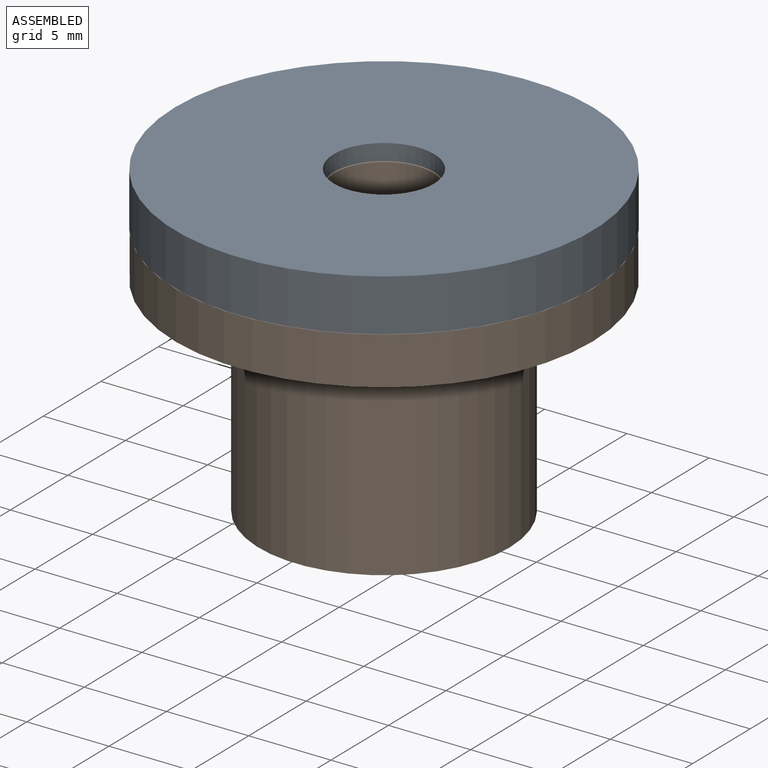
[diagram: assembled view]
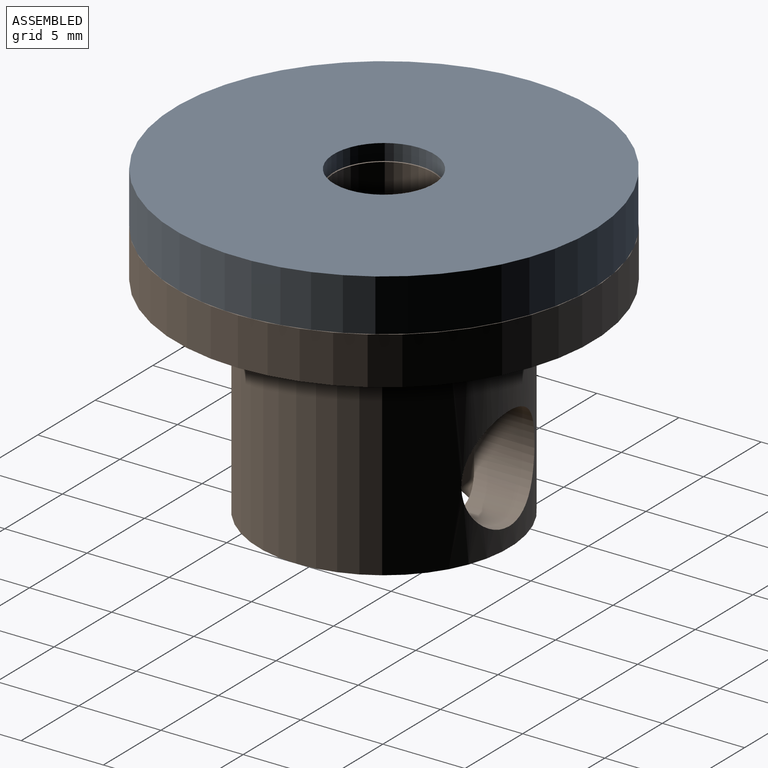
[diagram: assembled view, second angle]
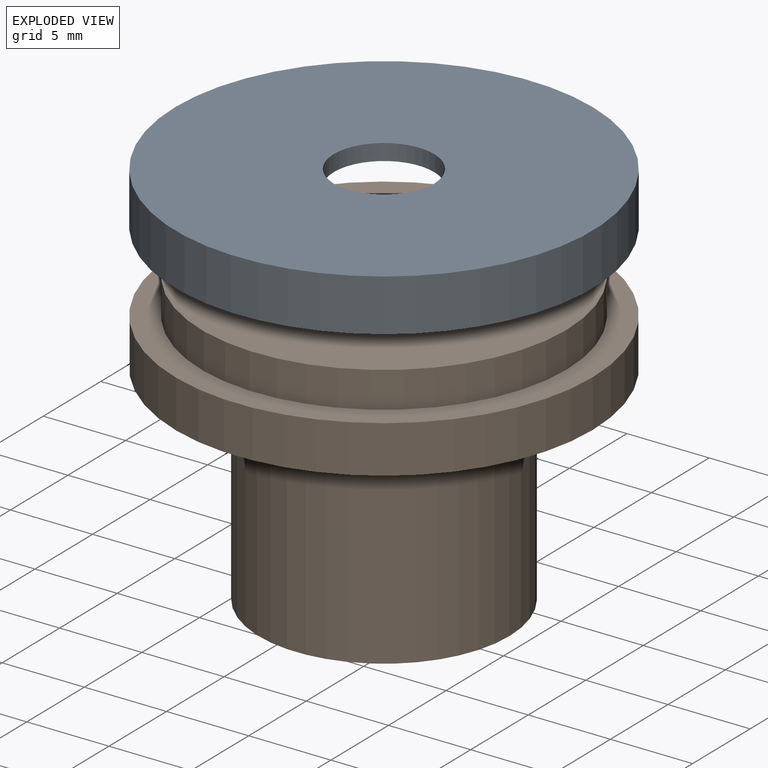
[diagram: exploded view]
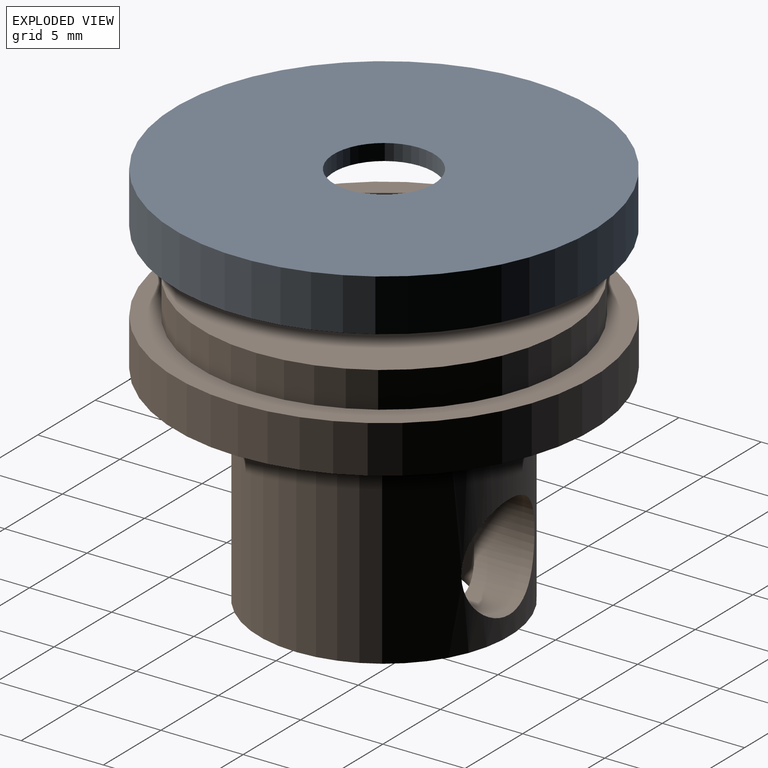
[diagram: exploded view, second angle]
ASSEMBLY  parts=2 mates=2
PART A: 6 faces, bbox 25.4x25.4x3.2 mm
  f0: cylinder r=12.7mm len=25.4mm, axis (0,0,-1), area 253.4mm2, adj f1,f2
  f1: plane 25.4x25.4mm, normal (0,0,1), area 118.8mm2, adj f0,f3
  f2: plane 25.4x25.4mm, normal (0,0,-1), area 477.5mm2, adj f0,f5
  f3: cylinder r=11.11mm len=22.23mm, axis (0,0,1), area 152.5mm2, adj f1,f4
  f4: plane 22.23x22.23mm, normal (0,0,1), area 358.8mm2, adj f3,f5
  f5: cylinder r=3.05mm len=6.1mm, axis (0,0,1), area 19mm2, adj f2,f4
PART B: 11 faces, bbox 25.4x25.4x17.8 mm
  f0: cylinder r=11.11mm len=22.23mm, axis (0,0,-1), area 152.5mm2, adj f1,f4
  f1: plane 22.23x22.23mm, normal (0,0,1), area 359.7mm2, adj f0,f7
  f2: cylinder r=12.7mm len=25.4mm, axis (0,0,1), area 231.1mm2, adj f3,f4
  f3: plane 25.4x25.4mm, normal (0,0,-1), area 324.3mm2, adj f2,f5
  f4: plane 25.4x25.4mm, normal (0,0,1), area 118.8mm2, adj f0,f2
  f5: cylinder r=7.62mm len=15.24mm, axis (0,0,1), area 575.6mm2, adj f3,f6,f10
  f6: plane 15.24x15.24mm, normal (0,0,-1), area 118.9mm2, adj f5,f9
  f7: cylinder r=3mm len=8.89mm, axis (0,0,1), area 167.4mm2, adj f1,f8
  f8: plane 8.99x8.99mm, normal (0,0,-1), area 35.3mm2, adj f7,f9
  f9: cylinder r=4.5mm len=8.99mm, axis (0,0,-1), area 217mm2, adj f6,f8,f10
  f10: cylinder r=3.17mm len=6.35mm, axis (0,-1,0), area 68mm2, adj f5,f9
PLACE A rot(axis=(0,1,0),180deg) t=(-45.14,-49.38,3.2)mm
PLACE B t=(-2.97,-19.01,0)mm
MATE fastened A.f0 <-> B.f0  axis (0,0,1) through (-2.97,-19.01,3.2)mm
MATE cylindrical A.f0 <-> B.f0  axis (0,0,1) through (-2.97,-19.01,3.2)mm
